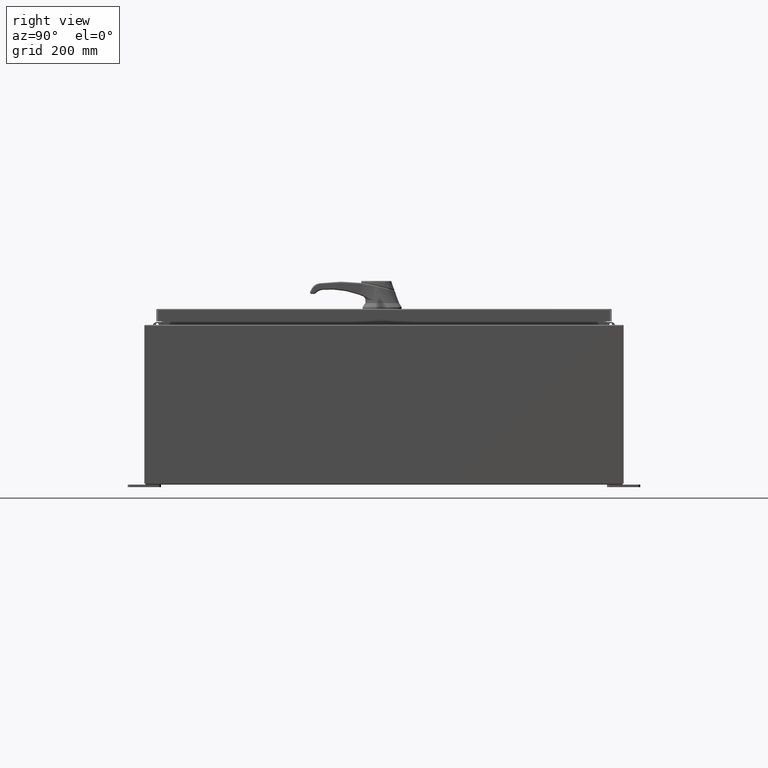
[diagram: clean part render]
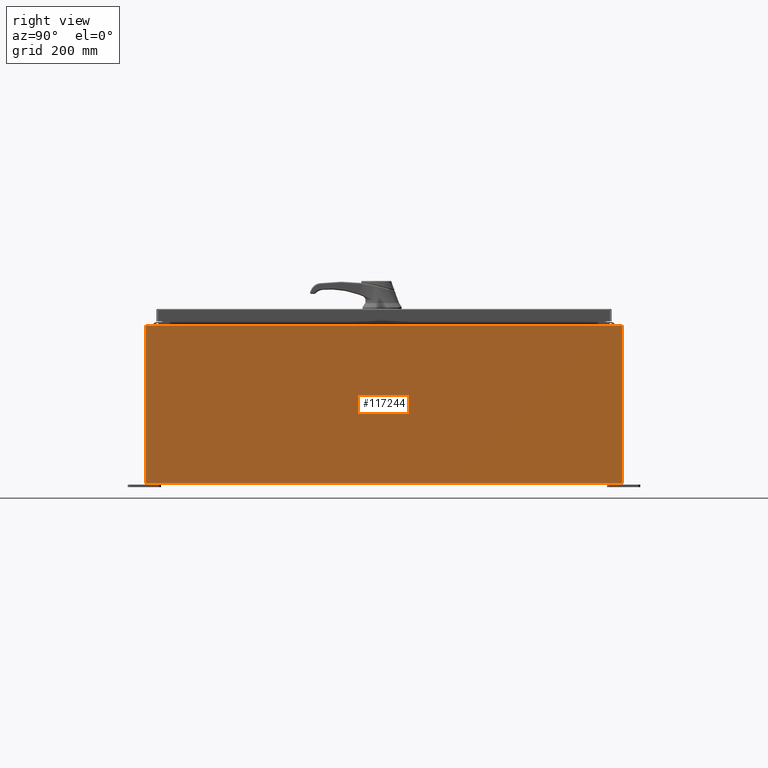
[diagram: same view with one face highlighted and labeled with its STEP entity id]
A machine part, right view. The second image highlights one B-rep face of the part: STEP entity #117244.
In plain terms, the highlighted planar face has unit normal (-1, 0, 0).
Its self-contained STEP definition (entity closure, byte-faithful):
#1238 = AXIS2_PLACEMENT_3D ( 'NONE', #75039, #65733, #7824 ) ;
#7824 = DIRECTION ( 'NONE',  ( 3.482016343714355100E-015, 0.0000000000000000000, 1.000000000000000000 ) ) ;
#11750 = ORIENTED_EDGE ( 'NONE', *, *, #110934, .T. ) ;
#13328 = ORIENTED_EDGE ( 'NONE', *, *, #80452, .F. ) ;
#14500 = LINE ( 'NONE', #42109, #43228 ) ;
#16701 = DIRECTION ( 'NONE',  ( -0.0000000000000000000, -1.000000000000000000, -0.0000000000000000000 ) ) ;
#20662 = CARTESIAN_POINT ( 'NONE',  ( 18.00000000000000000, 17.92530000000000000, 0.01299999999999766100 ) ) ;
#24047 = EDGE_CURVE ( 'NONE', #64167, #89927, #24517, .T. ) ;
#24517 = LINE ( 'NONE', #86357, #72850 ) ;
#30909 = VECTOR ( 'NONE', #75960, 39.37007874015748100 ) ;
#31557 = EDGE_LOOP ( 'NONE', ( #11750, #60384, #13328, #101755 ) ) ;
#35740 = CARTESIAN_POINT ( 'NONE',  ( 18.00000000000004300, 17.92530000000000000, 11.83760000000000200 ) ) ;
#39954 = VERTEX_POINT ( 'NONE', #42779 ) ;
#42109 = CARTESIAN_POINT ( 'NONE',  ( 18.00000000000000000, -17.92530000000000000, 0.01299999999999984700 ) ) ;
#42779 = CARTESIAN_POINT ( 'NONE',  ( 18.00000000000000000, -17.92530000000000000, 0.01300000000000022700 ) ) ;
#43228 = VECTOR ( 'NONE', #109738, 39.37007874015748100 ) ;
#56021 = PLANE ( 'NONE',  #1238 ) ;
#56509 = CARTESIAN_POINT ( 'NONE',  ( 18.00000000000000000, -17.92530000000000000, -6.293710784286997500E-014 ) ) ;
#60384 = ORIENTED_EDGE ( 'NONE', *, *, #61072, .T. ) ;
#61072 = EDGE_CURVE ( 'NONE', #98630, #39954, #114113, .T. ) ;
#64167 = VERTEX_POINT ( 'NONE', #20662 ) ;
#65733 = DIRECTION ( 'NONE',  ( -1.000000000000000000, 0.0000000000000000000, 3.482016343714355100E-015 ) ) ;
#66947 = DIRECTION ( 'NONE',  ( 3.482016343714355500E-015, -1.832640180902292400E-016, 1.000000000000000000 ) ) ;
#72850 = VECTOR ( 'NONE', #66947, 39.37007874015748100 ) ;
#75039 = CARTESIAN_POINT ( 'NONE',  ( 18.00000000000000000, 0.0000000000000000000, -6.293710784286997500E-014 ) ) ;
#75960 = DIRECTION ( 'NONE',  ( -3.482016343714355500E-015, 0.0000000000000000000, -1.000000000000000000 ) ) ;
#80452 = EDGE_CURVE ( 'NONE', #64167, #39954, #14500, .T. ) ;
#86357 = CARTESIAN_POINT ( 'NONE',  ( 18.00000000000000000, 17.92530000000000000, -5.965204533939718800E-014 ) ) ;
#89927 = VERTEX_POINT ( 'NONE', #104549 ) ;
#91707 = CARTESIAN_POINT ( 'NONE',  ( 18.00000000000004300, -17.92530000000000000, 11.83760000000000200 ) ) ;
#91785 = VECTOR ( 'NONE', #16701, 39.37007874015748100 ) ;
#98630 = VERTEX_POINT ( 'NONE', #91707 ) ;
#101755 = ORIENTED_EDGE ( 'NONE', *, *, #24047, .T. ) ;
#104503 = FACE_OUTER_BOUND ( 'NONE', #31557, .T. ) ;
#104549 = CARTESIAN_POINT ( 'NONE',  ( 18.00000000000004300, 17.92530000000000000, 11.83760000000000200 ) ) ;
#109738 = DIRECTION ( 'NONE',  ( 2.122662239958547800E-031, -1.000000000000000000, 6.096072018129156600E-017 ) ) ;
#110934 = EDGE_CURVE ( 'NONE', #89927, #98630, #117471, .T. ) ;
#114113 = LINE ( 'NONE', #56509, #30909 ) ;
#117244 = ADVANCED_FACE ( 'NONE', ( #104503 ), #56021, .F. ) ;
#117471 = LINE ( 'NONE', #35740, #91785 ) ;